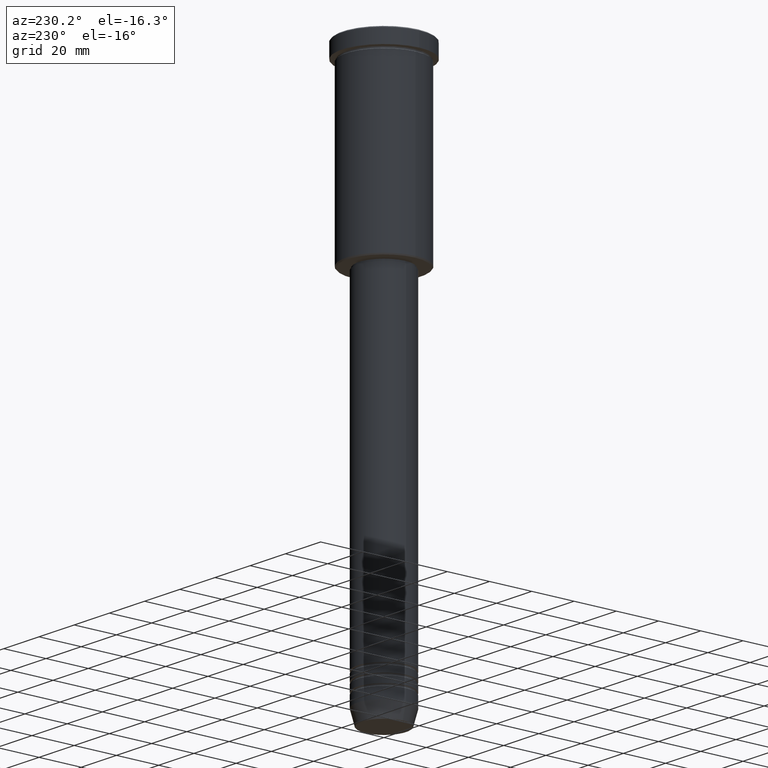
[diagram: clean part render]
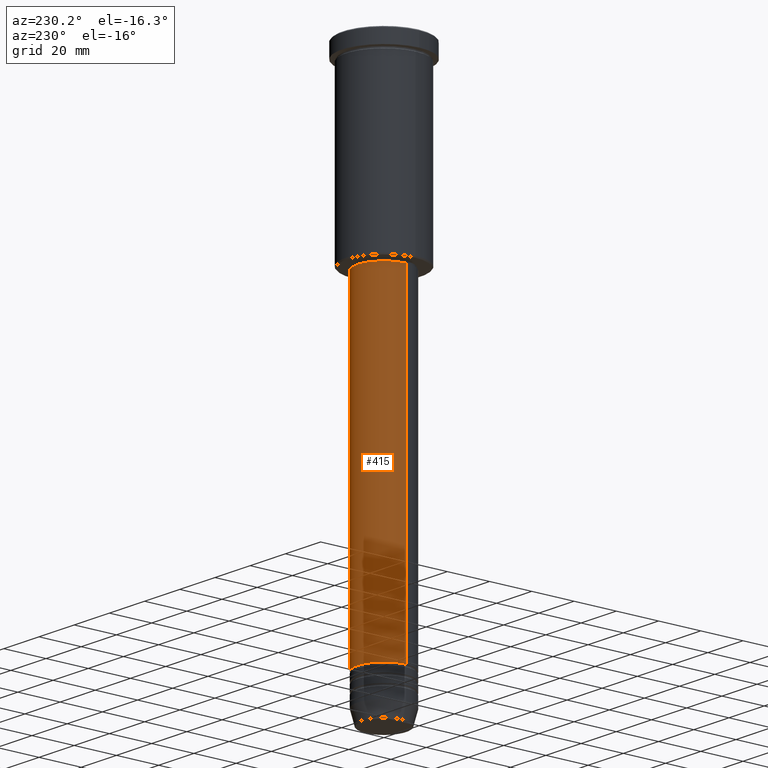
[diagram: same view with one face highlighted and labeled with its STEP entity id]
A machine part, auxiliary view. The second image highlights one B-rep face of the part: STEP entity #415.
In plain terms, the highlighted cylindrical surface (edge-blend (fillet) strip) has radius 12.5 mm, axis along (-0, -0, 1).
Its self-contained STEP definition (entity closure, byte-faithful):
#3 = DIRECTION ( 'NONE',  ( 1.000000000000000000, 0.000000000000000000, 0.000000000000000000 ) ) ;
#17 = EDGE_LOOP ( 'NONE', ( #1179, #892, #821, #964 ) ) ;
#23 = EDGE_CURVE ( 'NONE', #248, #805, #86, .T. ) ;
#34 = DIRECTION ( 'NONE',  ( 1.000000000000000000, 0.000000000000000000, 0.000000000000000000 ) ) ;
#38 = CARTESIAN_POINT ( 'NONE',  ( 12.50000000000000000, 0.000000000000000000, 0.000000000000000000 ) ) ;
#58 = CYLINDRICAL_SURFACE ( 'NONE', #1094, 12.50000000000000000 ) ;
#86 = CIRCLE ( 'NONE', #703, 12.50000000000000000 ) ;
#130 = LINE ( 'NONE', #315, #885 ) ;
#166 = CARTESIAN_POINT ( 'NONE',  ( -12.50000000000000000, 1.530808498934191521E-15, -239.0000000000000000 ) ) ;
#172 = VERTEX_POINT ( 'NONE', #418 ) ;
#207 = EDGE_CURVE ( 'NONE', #805, #172, #130, .T. ) ;
#248 = VERTEX_POINT ( 'NONE', #401 ) ;
#310 = VERTEX_POINT ( 'NONE', #422 ) ;
#315 = CARTESIAN_POINT ( 'NONE',  ( -12.50000000000000000, 1.530808498934191521E-15, 0.000000000000000000 ) ) ;
#363 = DIRECTION ( 'NONE',  ( -0.000000000000000000, -0.000000000000000000, 1.000000000000000000 ) ) ;
#392 = VECTOR ( 'NONE', #473, 1000.000000000000000 ) ;
#401 = CARTESIAN_POINT ( 'NONE',  ( 12.50000000000000000, 0.000000000000000000, -239.0000000000000000 ) ) ;
#415 = ADVANCED_FACE ( 'NONE', ( #1162 ), #58, .T. ) ;
#418 = CARTESIAN_POINT ( 'NONE',  ( -12.50000000000000000, 1.530808498934191521E-15, -87.00000000000002842 ) ) ;
#422 = CARTESIAN_POINT ( 'NONE',  ( 12.50000000000000000, 0.000000000000000000, -87.00000000000002842 ) ) ;
#473 = DIRECTION ( 'NONE',  ( -0.000000000000000000, -0.000000000000000000, 1.000000000000000000 ) ) ;
#474 = EDGE_CURVE ( 'NONE', #310, #172, #828, .T. ) ;
#518 = EDGE_CURVE ( 'NONE', #248, #310, #1112, .T. ) ;
#531 = CARTESIAN_POINT ( 'NONE',  ( 0.000000000000000000, 0.000000000000000000, -239.0000000000000000 ) ) ;
#703 = AXIS2_PLACEMENT_3D ( 'NONE', #531, #363, #1089 ) ;
#712 = CARTESIAN_POINT ( 'NONE',  ( 0.000000000000000000, 0.000000000000000000, 0.000000000000000000 ) ) ;
#761 = DIRECTION ( 'NONE',  ( -0.000000000000000000, -0.000000000000000000, 1.000000000000000000 ) ) ;
#805 = VERTEX_POINT ( 'NONE', #166 ) ;
#821 = ORIENTED_EDGE ( 'NONE', *, *, #474, .F. ) ;
#828 = CIRCLE ( 'NONE', #1172, 12.50000000000000000 ) ;
#853 = CARTESIAN_POINT ( 'NONE',  ( 0.000000000000000000, 0.000000000000000000, -87.00000000000002842 ) ) ;
#885 = VECTOR ( 'NONE', #949, 1000.000000000000000 ) ;
#892 = ORIENTED_EDGE ( 'NONE', *, *, #207, .T. ) ;
#949 = DIRECTION ( 'NONE',  ( -0.000000000000000000, -0.000000000000000000, 1.000000000000000000 ) ) ;
#964 = ORIENTED_EDGE ( 'NONE', *, *, #518, .F. ) ;
#1072 = DIRECTION ( 'NONE',  ( -0.000000000000000000, -0.000000000000000000, 1.000000000000000000 ) ) ;
#1089 = DIRECTION ( 'NONE',  ( 1.000000000000000000, 0.000000000000000000, 0.000000000000000000 ) ) ;
#1094 = AXIS2_PLACEMENT_3D ( 'NONE', #712, #1072, #3 ) ;
#1112 = LINE ( 'NONE', #38, #392 ) ;
#1162 = FACE_OUTER_BOUND ( 'NONE', #17, .T. ) ;
#1172 = AXIS2_PLACEMENT_3D ( 'NONE', #853, #761, #34 ) ;
#1179 = ORIENTED_EDGE ( 'NONE', *, *, #23, .T. ) ;